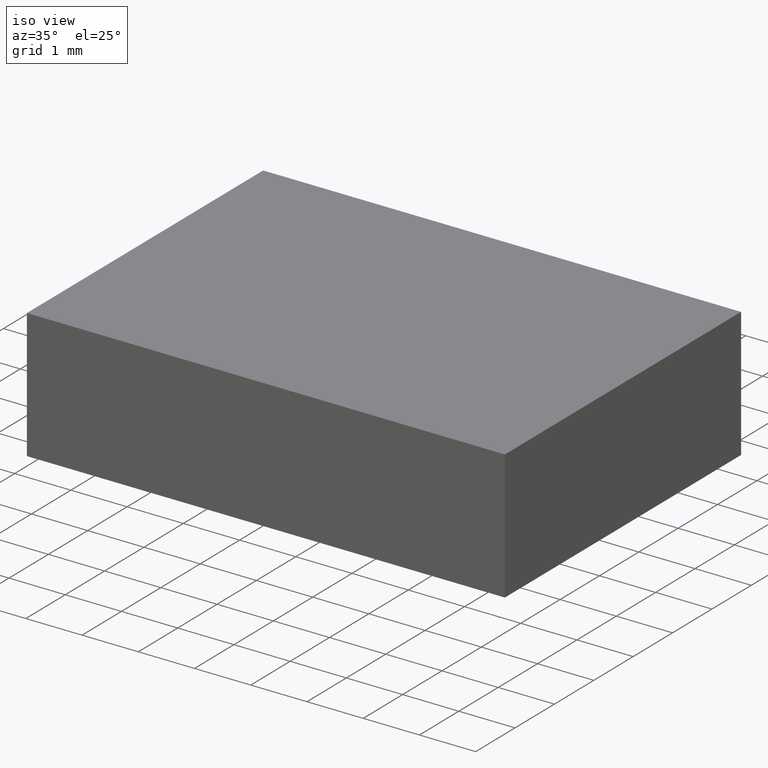
[diagram: clean part render]
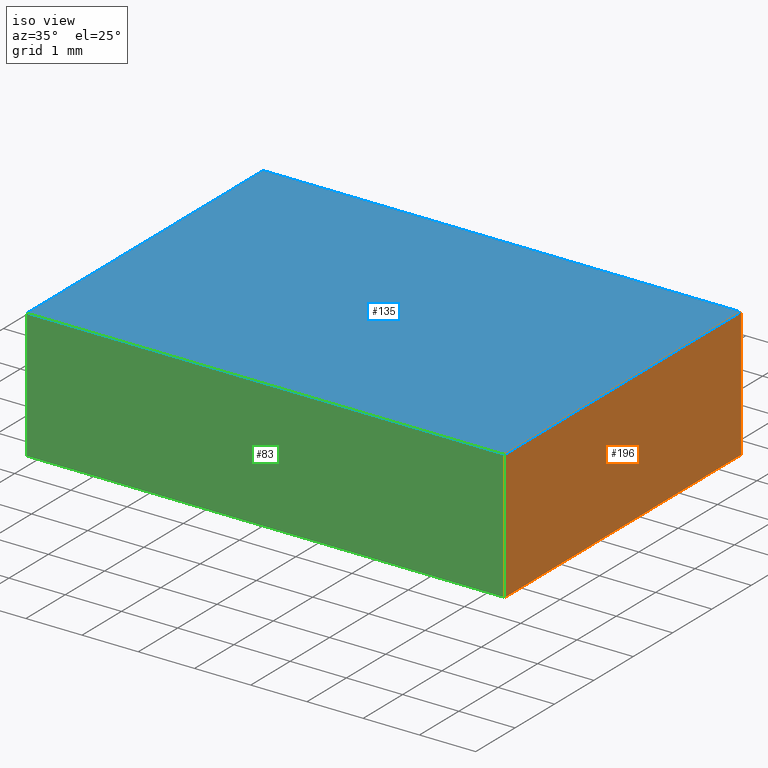
[diagram: same view with three faces highlighted in distinct colors, each labeled with its STEP entity id]
A machine part, iso view with three faces highlighted in distinct colors.
Their STEP definitions:

[orange] entity #196 — the highlighted planar face has unit normal (-1, 0, 0).
#9 = DIRECTION ( 'NONE',  ( -0.0000000000000000000, -0.0000000000000000000, -1.000000000000000000 ) ) ;
#10 = CARTESIAN_POINT ( 'NONE',  ( 24.49958715517702100, 9.312648366905317900, 0.0000000000000000000 ) ) ;
#15 = EDGE_CURVE ( 'NONE', #156, #69, #195, .T. ) ;
#16 = FACE_OUTER_BOUND ( 'NONE', #73, .T. ) ;
#18 = LINE ( 'NONE', #155, #50 ) ;
#22 = ORIENTED_EDGE ( 'NONE', *, *, #57, .F. ) ;
#32 = CARTESIAN_POINT ( 'NONE',  ( 24.49958715517702100, 15.31264836690531600, 2.299999999999999800 ) ) ;
#49 = VECTOR ( 'NONE', #127, 1000.000000000000000 ) ;
#50 = VECTOR ( 'NONE', #170, 1000.000000000000000 ) ;
#56 = AXIS2_PLACEMENT_3D ( 'NONE', #199, #88, #105 ) ;
#57 = EDGE_CURVE ( 'NONE', #104, #72, #152, .T. ) ;
#69 = VERTEX_POINT ( 'NONE', #10 ) ;
#70 = VECTOR ( 'NONE', #9, 1000.000000000000000 ) ;
#72 = VERTEX_POINT ( 'NONE', #109 ) ;
#73 = EDGE_LOOP ( 'NONE', ( #183, #22, #78, #161 ) ) ;
#78 = ORIENTED_EDGE ( 'NONE', *, *, #148, .F. ) ;
#88 = DIRECTION ( 'NONE',  ( -1.000000000000000000, 0.0000000000000000000, 0.0000000000000000000 ) ) ;
#94 = LINE ( 'NONE', #112, #49 ) ;
#104 = VERTEX_POINT ( 'NONE', #32 ) ;
#105 = DIRECTION ( 'NONE',  ( 0.0000000000000000000, 0.0000000000000000000, 1.000000000000000000 ) ) ;
#109 = CARTESIAN_POINT ( 'NONE',  ( 24.49958715517702100, 15.31264836690531600, 0.0000000000000000000 ) ) ;
#112 = CARTESIAN_POINT ( 'NONE',  ( 24.49958715517702100, 15.31264836690531600, 0.0000000000000000000 ) ) ;
#119 = DIRECTION ( 'NONE',  ( -0.0000000000000000000, -0.0000000000000000000, -1.000000000000000000 ) ) ;
#121 = CARTESIAN_POINT ( 'NONE',  ( 24.49958715517702100, 9.312648366905317900, 2.299999999999999800 ) ) ;
#127 = DIRECTION ( 'NONE',  ( -0.0000000000000000000, 1.000000000000000000, -0.0000000000000000000 ) ) ;
#140 = CARTESIAN_POINT ( 'NONE',  ( 24.49958715517702100, 15.31264836690531600, 2.299999999999999800 ) ) ;
#147 = VECTOR ( 'NONE', #119, 1000.000000000000000 ) ;
#148 = EDGE_CURVE ( 'NONE', #156, #104, #18, .T. ) ;
#152 = LINE ( 'NONE', #140, #147 ) ;
#155 = CARTESIAN_POINT ( 'NONE',  ( 24.49958715517702100, 15.31264836690531600, 2.299999999999999800 ) ) ;
#156 = VERTEX_POINT ( 'NONE', #182 ) ;
#161 = ORIENTED_EDGE ( 'NONE', *, *, #15, .T. ) ;
#170 = DIRECTION ( 'NONE',  ( -0.0000000000000000000, 1.000000000000000000, -0.0000000000000000000 ) ) ;
#182 = CARTESIAN_POINT ( 'NONE',  ( 24.49958715517702100, 9.312648366905317900, 2.299999999999999800 ) ) ;
#183 = ORIENTED_EDGE ( 'NONE', *, *, #197, .T. ) ;
#185 = PLANE ( 'NONE',  #56 ) ;
#195 = LINE ( 'NONE', #121, #70 ) ;
#196 = ADVANCED_FACE ( 'NONE', ( #16 ), #185, .F. ) ;
#197 = EDGE_CURVE ( 'NONE', #69, #72, #94, .T. ) ;
#199 = CARTESIAN_POINT ( 'NONE',  ( 24.49958715517702100, 15.31264836690531600, 2.299999999999999800 ) ) ;

[blue] entity #135 — the highlighted planar face has unit normal (0, 0, 1).
#1 = CARTESIAN_POINT ( 'NONE',  ( 15.99958715517701600, 15.31264836690531800, 2.299999999999999800 ) ) ;
#6 = VECTOR ( 'NONE', #125, 1000.000000000000000 ) ;
#11 = VECTOR ( 'NONE', #120, 1000.000000000000000 ) ;
#12 = CARTESIAN_POINT ( 'NONE',  ( 15.99958715517702000, 9.312648366905321500, 2.299999999999999800 ) ) ;
#18 = LINE ( 'NONE', #155, #50 ) ;
#30 = DIRECTION ( 'NONE',  ( 1.000000000000000000, -4.081702296416016500E-016, 0.0000000000000000000 ) ) ;
#31 = PLANE ( 'NONE',  #187 ) ;
#32 = CARTESIAN_POINT ( 'NONE',  ( 24.49958715517702100, 15.31264836690531600, 2.299999999999999800 ) ) ;
#34 = CARTESIAN_POINT ( 'NONE',  ( 15.99958715517702000, 9.312648366905321500, 2.299999999999999800 ) ) ;
#46 = DIRECTION ( 'NONE',  ( 1.000000000000000000, 0.0000000000000000000, -0.0000000000000000000 ) ) ;
#50 = VECTOR ( 'NONE', #170, 1000.000000000000000 ) ;
#53 = ORIENTED_EDGE ( 'NONE', *, *, #148, .T. ) ;
#54 = LINE ( 'NONE', #157, #11 ) ;
#60 = DIRECTION ( 'NONE',  ( 0.0000000000000000000, 0.0000000000000000000, 1.000000000000000000 ) ) ;
#66 = ORIENTED_EDGE ( 'NONE', *, *, #160, .T. ) ;
#100 = VERTEX_POINT ( 'NONE', #34 ) ;
#104 = VERTEX_POINT ( 'NONE', #32 ) ;
#113 = EDGE_LOOP ( 'NONE', ( #162, #66, #53, #151 ) ) ;
#117 = VERTEX_POINT ( 'NONE', #1 ) ;
#120 = DIRECTION ( 'NONE',  ( 5.782411586589360600E-016, -1.000000000000000000, 0.0000000000000000000 ) ) ;
#125 = DIRECTION ( 'NONE',  ( -1.000000000000000000, 2.040851148208007300E-016, -0.0000000000000000000 ) ) ;
#126 = EDGE_CURVE ( 'NONE', #104, #117, #164, .T. ) ;
#130 = LINE ( 'NONE', #12, #186 ) ;
#131 = FACE_OUTER_BOUND ( 'NONE', #113, .T. ) ;
#134 = EDGE_CURVE ( 'NONE', #117, #100, #54, .T. ) ;
#135 = ADVANCED_FACE ( 'NONE', ( #131 ), #31, .T. ) ;
#148 = EDGE_CURVE ( 'NONE', #156, #104, #18, .T. ) ;
#151 = ORIENTED_EDGE ( 'NONE', *, *, #126, .T. ) ;
#155 = CARTESIAN_POINT ( 'NONE',  ( 24.49958715517702100, 15.31264836690531600, 2.299999999999999800 ) ) ;
#156 = VERTEX_POINT ( 'NONE', #182 ) ;
#157 = CARTESIAN_POINT ( 'NONE',  ( 15.99958715517701600, 15.31264836690531800, 2.299999999999999800 ) ) ;
#160 = EDGE_CURVE ( 'NONE', #100, #156, #130, .T. ) ;
#162 = ORIENTED_EDGE ( 'NONE', *, *, #134, .T. ) ;
#164 = LINE ( 'NONE', #177, #6 ) ;
#170 = DIRECTION ( 'NONE',  ( -0.0000000000000000000, 1.000000000000000000, -0.0000000000000000000 ) ) ;
#177 = CARTESIAN_POINT ( 'NONE',  ( 15.99958715517701600, 15.31264836690531800, 2.299999999999999800 ) ) ;
#182 = CARTESIAN_POINT ( 'NONE',  ( 24.49958715517702100, 9.312648366905317900, 2.299999999999999800 ) ) ;
#186 = VECTOR ( 'NONE', #30, 1000.000000000000000 ) ;
#187 = AXIS2_PLACEMENT_3D ( 'NONE', #200, #60, #46 ) ;
#200 = CARTESIAN_POINT ( 'NONE',  ( 0.0000000000000000000, 0.0000000000000000000, 2.299999999999999800 ) ) ;

[green] entity #83 — the highlighted planar face has unit normal (0, 1, -0).
#2 = DIRECTION ( 'NONE',  ( -0.0000000000000000000, -0.0000000000000000000, -1.000000000000000000 ) ) ;
#9 = DIRECTION ( 'NONE',  ( -0.0000000000000000000, -0.0000000000000000000, -1.000000000000000000 ) ) ;
#10 = CARTESIAN_POINT ( 'NONE',  ( 24.49958715517702100, 9.312648366905317900, 0.0000000000000000000 ) ) ;
#12 = CARTESIAN_POINT ( 'NONE',  ( 15.99958715517702000, 9.312648366905321500, 2.299999999999999800 ) ) ;
#13 = DIRECTION ( 'NONE',  ( -1.000000000000000000, 4.081702296416016500E-016, 0.0000000000000000000 ) ) ;
#14 = DIRECTION ( 'NONE',  ( 4.081702296416016500E-016, 1.000000000000000000, -0.0000000000000000000 ) ) ;
#15 = EDGE_CURVE ( 'NONE', #156, #69, #195, .T. ) ;
#30 = DIRECTION ( 'NONE',  ( 1.000000000000000000, -4.081702296416016500E-016, 0.0000000000000000000 ) ) ;
#34 = CARTESIAN_POINT ( 'NONE',  ( 15.99958715517702000, 9.312648366905321500, 2.299999999999999800 ) ) ;
#42 = LINE ( 'NONE', #111, #102 ) ;
#58 = CARTESIAN_POINT ( 'NONE',  ( 15.99958715517702000, 9.312648366905321500, 0.0000000000000000000 ) ) ;
#63 = EDGE_CURVE ( 'NONE', #150, #69, #191, .T. ) ;
#67 = VECTOR ( 'NONE', #171, 1000.000000000000000 ) ;
#69 = VERTEX_POINT ( 'NONE', #10 ) ;
#70 = VECTOR ( 'NONE', #9, 1000.000000000000000 ) ;
#83 = ADVANCED_FACE ( 'NONE', ( #87 ), #144, .F. ) ;
#87 = FACE_OUTER_BOUND ( 'NONE', #193, .T. ) ;
#93 = CARTESIAN_POINT ( 'NONE',  ( 15.99958715517702000, 9.312648366905321500, 2.299999999999999800 ) ) ;
#97 = ORIENTED_EDGE ( 'NONE', *, *, #201, .T. ) ;
#100 = VERTEX_POINT ( 'NONE', #34 ) ;
#102 = VECTOR ( 'NONE', #2, 1000.000000000000000 ) ;
#111 = CARTESIAN_POINT ( 'NONE',  ( 15.99958715517702000, 9.312648366905321500, 2.299999999999999800 ) ) ;
#118 = ORIENTED_EDGE ( 'NONE', *, *, #63, .T. ) ;
#121 = CARTESIAN_POINT ( 'NONE',  ( 24.49958715517702100, 9.312648366905317900, 2.299999999999999800 ) ) ;
#124 = ORIENTED_EDGE ( 'NONE', *, *, #15, .F. ) ;
#130 = LINE ( 'NONE', #12, #186 ) ;
#133 = ORIENTED_EDGE ( 'NONE', *, *, #160, .F. ) ;
#144 = PLANE ( 'NONE',  #179 ) ;
#150 = VERTEX_POINT ( 'NONE', #181 ) ;
#156 = VERTEX_POINT ( 'NONE', #182 ) ;
#160 = EDGE_CURVE ( 'NONE', #100, #156, #130, .T. ) ;
#171 = DIRECTION ( 'NONE',  ( 1.000000000000000000, -4.081702296416016500E-016, 0.0000000000000000000 ) ) ;
#179 = AXIS2_PLACEMENT_3D ( 'NONE', #93, #14, #13 ) ;
#181 = CARTESIAN_POINT ( 'NONE',  ( 15.99958715517702000, 9.312648366905321500, 0.0000000000000000000 ) ) ;
#182 = CARTESIAN_POINT ( 'NONE',  ( 24.49958715517702100, 9.312648366905317900, 2.299999999999999800 ) ) ;
#186 = VECTOR ( 'NONE', #30, 1000.000000000000000 ) ;
#191 = LINE ( 'NONE', #58, #67 ) ;
#193 = EDGE_LOOP ( 'NONE', ( #118, #124, #133, #97 ) ) ;
#195 = LINE ( 'NONE', #121, #70 ) ;
#201 = EDGE_CURVE ( 'NONE', #100, #150, #42, .T. ) ;